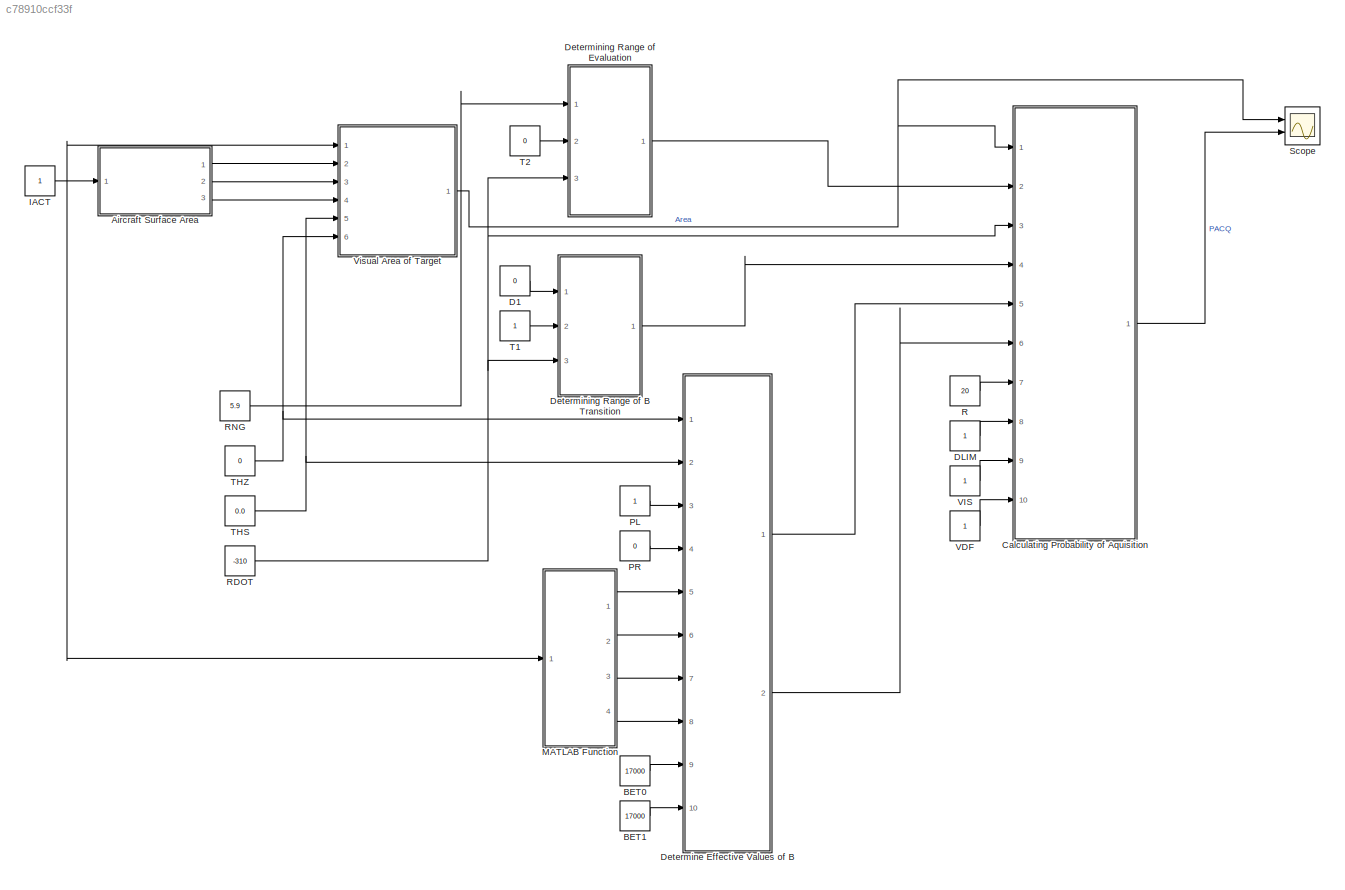
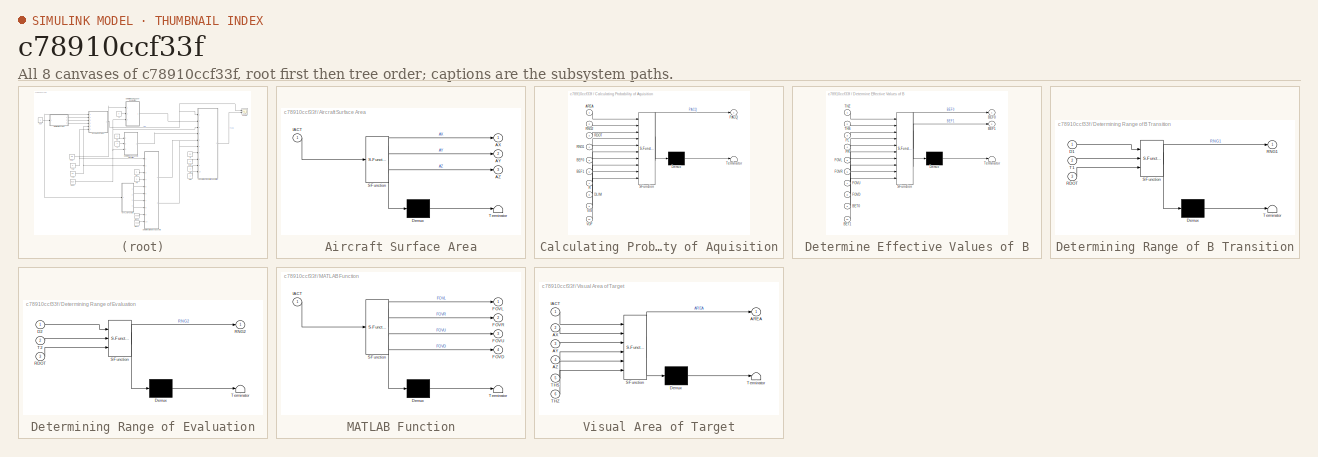
[diagram: thumbnail index - all 8 canvases of the model, root first then tree order]
MODEL slx_c78910ccf33f
KIND model
CONFIG AbsTol = auto
CONFIG EnableMultiTasking = off
CONFIG FixedStep = auto
CONFIG MaxStep = auto
CONFIG MinStep = auto
CONFIG RelTol = 1e-3
CONFIG SampleTimeConstraint = Unconstrained
CONFIG Solver = VariableStepAuto
CONFIG SolverName = VariableStepAuto
CONFIG StartTime = 0.0
CONFIG StopTime = 10.0
BLOCK [SubSystem] Aircraft Surface Area
  ErrorFcn = Stateflow.Translate.translate
  PermitHierarchicalResolution = ExplicitOnly
  Ports = [1, 3]
  RequestExecContextInheritance = off
  SFBlockType = MATLAB Function
  TreatAsAtomicUnit = on
BLOCK [Demux] Aircraft Surface Area/ Demux 
  Outputs = 1
  Ports = [1, 1]
BLOCK [S-Function] Aircraft Surface Area/ SFunction 
  EnableBusSupport = on
  FunctionName = sf_sfun
  PortCounts = [1 4]
  Ports = [1, 4]
  SFcnIsStateOwnerBlock = off
  SFunctionDeploymentMode = off
  Tag = Stateflow S-Function 3
BLOCK [Terminator] Aircraft Surface Area/ Terminator 
BLOCK [Outport] Aircraft Surface Area/AX
  IconDisplay = Port number
BLOCK [Outport] Aircraft Surface Area/AY
  IconDisplay = Port number
  Port = 2
BLOCK [Outport] Aircraft Surface Area/AZ
  IconDisplay = Port number
  Port = 3
BLOCK [Inport] Aircraft Surface Area/IACT
  IconDisplay = Port number
BLOCK [Constant] BET0
  Value = 17000
BLOCK [Constant] BET1
  Value = 17000
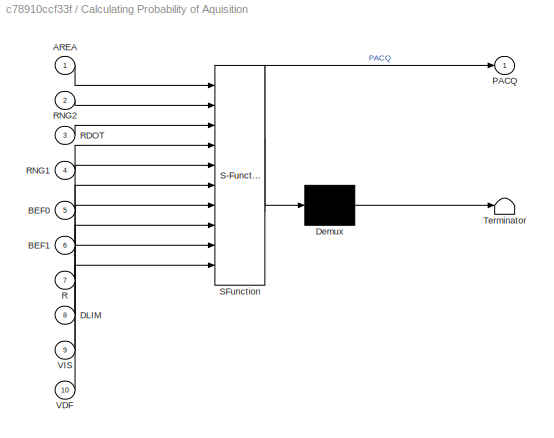
BLOCK [SubSystem] Calculating Probability of Aquisition
  ErrorFcn = Stateflow.Translate.translate
  PermitHierarchicalResolution = ExplicitOnly
  Ports = [10, 1]
  RequestExecContextInheritance = off
  SFBlockType = MATLAB Function
  TreatAsAtomicUnit = on
BLOCK [Demux] Calculating Probability of Aquisition/ Demux 
  Outputs = 1
  Ports = [1, 1]
BLOCK [S-Function] Calculating Probability of Aquisition/ SFunction 
  EnableBusSupport = on
  FunctionName = sf_sfun
  PortCounts = [10 2]
  Ports = [10, 2]
  SFcnIsStateOwnerBlock = off
  SFunctionDeploymentMode = off
  Tag = Stateflow S-Function 1
BLOCK [Terminator] Calculating Probability of Aquisition/ Terminator 
BLOCK [Inport] Calculating Probability of Aquisition/AREA
  IconDisplay = Port number
BLOCK [Inport] Calculating Probability of Aquisition/BEF0
  IconDisplay = Port number
  Port = 5
BLOCK [Inport] Calculating Probability of Aquisition/BEF1
  IconDisplay = Port number
  Port = 6
BLOCK [Inport] Calculating Probability of Aquisition/DLIM
  IconDisplay = Port number
  Port = 8
BLOCK [Outport] Calculating Probability of Aquisition/PACQ
  IconDisplay = Port number
BLOCK [Inport] Calculating Probability of Aquisition/R
  IconDisplay = Port number
  Port = 7
BLOCK [Inport] Calculating Probability of Aquisition/RDOT
  IconDisplay = Port number
  Port = 3
BLOCK [Inport] Calculating Probability of Aquisition/RNG1
  IconDisplay = Port number
  Port = 4
BLOCK [Inport] Calculating Probability of Aquisition/RNG2
  IconDisplay = Port number
  Port = 2
BLOCK [Inport] Calculating Probability of Aquisition/VDF
  IconDisplay = Port number
  Port = 10
BLOCK [Inport] Calculating Probability of Aquisition/VIS
  IconDisplay = Port number
  Port = 9
BLOCK [Constant] D1
  Value = 0
BLOCK [Constant] DLIM
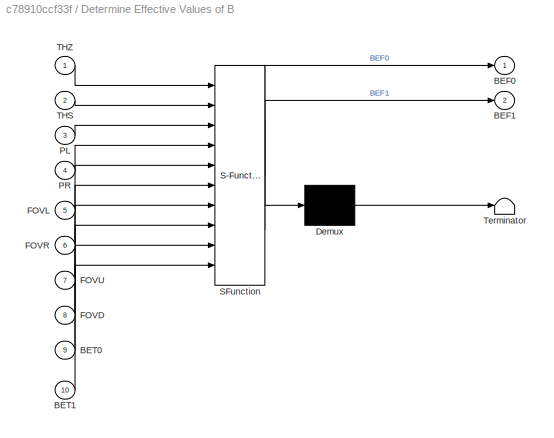
BLOCK [SubSystem] Determine Effective Values of B
  ErrorFcn = Stateflow.Translate.translate
  PermitHierarchicalResolution = ExplicitOnly
  Ports = [10, 2]
  RequestExecContextInheritance = off
  SFBlockType = MATLAB Function
  TreatAsAtomicUnit = on
BLOCK [Demux] Determine Effective Values of B/ Demux 
  Outputs = 1
  Ports = [1, 1]
BLOCK [S-Function] Determine Effective Values of B/ SFunction 
  EnableBusSupport = on
  FunctionName = sf_sfun
  PortCounts = [10 3]
  Ports = [10, 3]
  SFcnIsStateOwnerBlock = off
  SFunctionDeploymentMode = off
  Tag = Stateflow S-Function 6
BLOCK [Terminator] Determine Effective Values of B/ Terminator 
BLOCK [Outport] Determine Effective Values of B/BEF0
  IconDisplay = Port number
BLOCK [Outport] Determine Effective Values of B/BEF1
  IconDisplay = Port number
  Port = 2
BLOCK [Inport] Determine Effective Values of B/BET0
  IconDisplay = Port number
  Port = 9
BLOCK [Inport] Determine Effective Values of B/BET1
  IconDisplay = Port number
  Port = 10
BLOCK [Inport] Determine Effective Values of B/FOVD
  IconDisplay = Port number
  Port = 8
BLOCK [Inport] Determine Effective Values of B/FOVL
  IconDisplay = Port number
  Port = 5
BLOCK [Inport] Determine Effective Values of B/FOVR
  IconDisplay = Port number
  Port = 6
BLOCK [Inport] Determine Effective Values of B/FOVU
  IconDisplay = Port number
  Port = 7
BLOCK [Inport] Determine Effective Values of B/PL
  IconDisplay = Port number
  Port = 3
BLOCK [Inport] Determine Effective Values of B/PR
  IconDisplay = Port number
  Port = 4
BLOCK [Inport] Determine Effective Values of B/THS
  IconDisplay = Port number
  Port = 2
BLOCK [Inport] Determine Effective Values of B/THZ
  IconDisplay = Port number
BLOCK [SubSystem] Determining Range of B Transition
  ErrorFcn = Stateflow.Translate.translate
  PermitHierarchicalResolution = ExplicitOnly
  Ports = [3, 1]
  RequestExecContextInheritance = off
  SFBlockType = MATLAB Function
  TreatAsAtomicUnit = on
BLOCK [Demux] Determining Range of B Transition/ Demux 
  Outputs = 1
  Ports = [1, 1]
BLOCK [S-Function] Determining Range of B Transition/ SFunction 
  EnableBusSupport = on
  FunctionName = sf_sfun
  PortCounts = [3 2]
  Ports = [3, 2]
  SFcnIsStateOwnerBlock = off
  SFunctionDeploymentMode = off
  Tag = Stateflow S-Function 4
BLOCK [Terminator] Determining Range of B Transition/ Terminator 
BLOCK [Inport] Determining Range of B Transition/D1
  IconDisplay = Port number
BLOCK [Inport] Determining Range of B Transition/RDOT
  IconDisplay = Port number
  Port = 3
BLOCK [Outport] Determining Range of B Transition/RNG1
  IconDisplay = Port number
BLOCK [Inport] Determining Range of B Transition/T1
  IconDisplay = Port number
  Port = 2
BLOCK [SubSystem] Determining Range of Evaluation
  ErrorFcn = Stateflow.Translate.translate
  PermitHierarchicalResolution = ExplicitOnly
  Ports = [3, 1]
  RequestExecContextInheritance = off
  SFBlockType = MATLAB Function
  TreatAsAtomicUnit = on
BLOCK [Demux] Determining Range of Evaluation/ Demux 
  Outputs = 1
  Ports = [1, 1]
BLOCK [S-Function] Determining Range of Evaluation/ SFunction 
  EnableBusSupport = on
  FunctionName = sf_sfun
  PortCounts = [3 2]
  Ports = [3, 2]
  SFcnIsStateOwnerBlock = off
  SFunctionDeploymentMode = off
  Tag = Stateflow S-Function 5
BLOCK [Terminator] Determining Range of Evaluation/ Terminator 
BLOCK [Inport] Determining Range of Evaluation/D2
  IconDisplay = Port number
BLOCK [Inport] Determining Range of Evaluation/RDOT
  IconDisplay = Port number
  Port = 3
BLOCK [Outport] Determining Range of Evaluation/RNG2
  IconDisplay = Port number
BLOCK [Inport] Determining Range of Evaluation/T2
  IconDisplay = Port number
  Port = 2
BLOCK [Constant] IACT 
BLOCK [SubSystem] MATLAB Function
  ErrorFcn = Stateflow.Translate.translate
  PermitHierarchicalResolution = ExplicitOnly
  Ports = [1, 4]
  RequestExecContextInheritance = off
  SFBlockType = MATLAB Function
  TreatAsAtomicUnit = on
BLOCK [Demux] MATLAB Function/ Demux 
  Outputs = 1
  Ports = [1, 1]
BLOCK [S-Function] MATLAB Function/ SFunction 
  EnableBusSupport = on
  FunctionName = sf_sfun
  PortCounts = [1 5]
  Ports = [1, 5]
  SFcnIsStateOwnerBlock = off
  SFunctionDeploymentMode = off
  Tag = Stateflow S-Function 7
BLOCK [Terminator] MATLAB Function/ Terminator 
BLOCK [Outport] MATLAB Function/FOVD
  IconDisplay = Port number
  Port = 4
BLOCK [Outport] MATLAB Function/FOVL
  IconDisplay = Port number
BLOCK [Outport] MATLAB Function/FOVR
  IconDisplay = Port number
  Port = 2
BLOCK [Outport] MATLAB Function/FOVU
  IconDisplay = Port number
  Port = 3
BLOCK [Inport] MATLAB Function/IACT
  IconDisplay = Port number
BLOCK [Constant] PL
BLOCK [Constant] PR
  Value = 0
BLOCK [Constant] R
  Value = 20
BLOCK [Constant] RDOT 
  Value = -310
BLOCK [Constant] RNG 
  Value = 5.9
BLOCK [Scope] Scope
  Floating = off
  NumInputPorts = 2
  Ports = [2]
  ScopeSpecificationString = Simulink.scopes.TimeScopeBlockCfg('CurrentConfiguration', extmgr.ConfigurationSet(extmgr.Configuration('Core','General UI',true),extmgr.Configuration('Core','Source UI',true),extmgr.Configuration('Sources','WiredSimulink',true),extmgr.Configuration('Visuals','Time Domain',true,'SerializedDisplays',{struct('MinYLimReal','-3.40225','MaxYLimReal','39.26692','YLabelReal','','MinYLimMag','0.00000','Max...<+1455ch>
BLOCK [Constant] T1
BLOCK [Constant] T2
  Value = 0
BLOCK [Constant] THS
  Value = 0.0
BLOCK [Constant] THZ
  Value = 0
BLOCK [Constant] VDF 
BLOCK [Constant] VIS
BLOCK [SubSystem] Visual Area of Target
  ErrorFcn = Stateflow.Translate.translate
  PermitHierarchicalResolution = ExplicitOnly
  Ports = [6, 1]
  RequestExecContextInheritance = off
  SFBlockType = MATLAB Function
  TreatAsAtomicUnit = on
BLOCK [Demux] Visual Area of Target/ Demux 
  Outputs = 1
  Ports = [1, 1]
BLOCK [S-Function] Visual Area of Target/ SFunction 
  EnableBusSupport = on
  FunctionName = sf_sfun
  PortCounts = [6 2]
  Ports = [6, 2]
  SFcnIsStateOwnerBlock = off
  SFunctionDeploymentMode = off
  Tag = Stateflow S-Function 2
BLOCK [Terminator] Visual Area of Target/ Terminator 
BLOCK [Outport] Visual Area of Target/AREA
  IconDisplay = Port number
BLOCK [Inport] Visual Area of Target/AX
  IconDisplay = Port number
  Port = 2
BLOCK [Inport] Visual Area of Target/AY
  IconDisplay = Port number
  Port = 3
BLOCK [Inport] Visual Area of Target/AZ
  IconDisplay = Port number
  Port = 4
BLOCK [Inport] Visual Area of Target/IACT
  IconDisplay = Port number
BLOCK [Inport] Visual Area of Target/THS
  IconDisplay = Port number
  Port = 5
BLOCK [Inport] Visual Area of Target/THZ
  IconDisplay = Port number
  Port = 6
LINE Aircraft Surface Area:1 -> Visual Area of Target:2
LINE Aircraft Surface Area:2 -> Visual Area of Target:3
LINE Aircraft Surface Area:3 -> Visual Area of Target:4
LINE BET0:1 -> Determine Effective Values of B:9
LINE BET1:1 -> Determine Effective Values of B:10
LINE Calculating Probability of Aquisition:1 -> Scope:2
LINE D1:1 -> Determining Range of B Transition:1
LINE DLIM:1 -> Calculating Probability of Aquisition:8
LINE Determine Effective Values of B:1 -> Calculating Probability of Aquisition:5
LINE Determine Effective Values of B:2 -> Calculating Probability of Aquisition:6
LINE Determining Range of B Transition:1 -> Calculating Probability of Aquisition:4
LINE Determining Range of Evaluation:1 -> Calculating Probability of Aquisition:2
NET IACT :1 -> Aircraft Surface Area:1, MATLAB Function:1, Visual Area of Target:1
LINE MATLAB Function:1 -> Determine Effective Values of B:5
LINE MATLAB Function:2 -> Determine Effective Values of B:6
LINE MATLAB Function:3 -> Determine Effective Values of B:7
LINE MATLAB Function:4 -> Determine Effective Values of B:8
LINE PL:1 -> Determine Effective Values of B:3
LINE PR:1 -> Determine Effective Values of B:4
LINE R:1 -> Calculating Probability of Aquisition:7
NET RDOT :1 -> Calculating Probability of Aquisition:3, Determining Range of B Transition:3, Determining Range of Evaluation:3
LINE RNG :1 -> Determining Range of Evaluation:1
LINE T1:1 -> Determining Range of B Transition:2
LINE T2:1 -> Determining Range of Evaluation:2
NET THS:1 -> Determine Effective Values of B:2, Visual Area of Target:5
NET THZ:1 -> Determine Effective Values of B:1, Visual Area of Target:6
LINE VDF :1 -> Calculating Probability of Aquisition:10
LINE VIS:1 -> Calculating Probability of Aquisition:9
NET Visual Area of Target:1 -> Calculating Probability of Aquisition:1, Scope:1
note: NET lines group one-source signal fan-out (src -> all destinations, sorted); 1:1 wires keep LINE
CHART Calculating Probability of Aquisition states=1 transitions=1
  STATE_LABEL 'eML_blk_kernel()'
  STATE_LABEL 'SCRIPT:\nfunction PACQ = JAndrews_Mod_7(AREA, RNG2, RDOT, RNG1, BEF0, BEF1, R, DLIM, VIS, VDF)\n% Input variable defintions\n% No, symbol, name, value, definition\n% 7.  R,  R,    20. nmi,                  visual range\n% 8.  d,  DLIM, 1 arc-min,                Resolution limit of human eye.\n% 17. r., RDOT, 380 kt*,                  Range rate of target aircraft\n% 21. A,  AREA, 35 sq.ft.*,             ...<+2333ch>'
CHART Visual Area of Target states=1 transitions=1
  STATE_LABEL 'eML_blk_kernel()'
  STATE_LABEL 'SCRIPT:\nfunction AREA = JAndrews_Mod_3(IACT,AX, AY, AZ, THS, THZ)\n% Input variable defintions\n% No, symbol, name, value, definition\n% 18. Ax, AX,   35 sq.ft.*,               Head-on visual area of target.\n% 19. Ay, AY,   85 sq.ft.*,               Broadside visual area of target.\n% 20. Az, AZ,   260 sq.ft.*,              Topside visual area of target.\n% 21. A,  AREA, 35 sq.ft.*,               Final...<+3608ch>'
CHART Aircraft Surface Area states=1 transitions=1
  STATE_LABEL 'eML_blk_kernel()'
  STATE_LABEL 'SCRIPT:\nfunction [AX, AY, AZ] = JAndrews_Mod_1(IACT)\n\n% Input variable defintions\n% No, symbol, name, value, definition\n% 1.  - , BET0, 17000 per steradian-sec,  single pilot B values before transition\n% 2.  - , BET1, 17000 per steradian-sec,  Single-pilot B value after transition\n% 3.  t1, T1,   180 sec,                  modified tau time for B transition (time to closest approach)\n% 4.  t2, T2, ...<+3608ch>'
CHART Determining Range of B Transition states=1 transitions=1
  STATE_LABEL 'eML_blk_kernel()'
  STATE_LABEL 'SCRIPT:\nfunction RNG1 = JAndrews_Mod_6(D1,T1,RDOT)\n% Input variable defintions\n% No, symbol, name, value, definition\n% 3.  t1, T1,   180 sec,                  modified tau time for B transition (time to closest approach)\n% 5.  D1, D1,   0. nmi,                   modified tau range parameter for B transition.\n% 17. r., RDOT, 380 kt*,                  Range rate of target aircraft\n% 24. R1, RNG1, 3....<+1293ch>'
CHART Determining Range of Evaluation states=1 transitions=1
  STATE_LABEL 'eML_blk_kernel()'
  STATE_LABEL 'SCRIPT:\nfunction RNG2 = JAndrews_Mod_5(D2, T2, RDOT)\n% Input variable defintions\n% No, symbol, name, value, definition\n% 4.  t2, T2,   12 sec,                   modified tau time for evaluation of PACQ (time to closest approach)\n% 6.  D2, D2,   0. nmi,                   modified tau range parameter for PACQ evaluation\n% 17. r., RDOT, 380 kt*,                  Range rate of target aircraft\n% 25. R2...<+1289ch>'
CHART Determine Effective Values of B states=1 transitions=1
  STATE_LABEL 'eML_blk_kernel()'
  STATE_LABEL 'SCRIPT:\nfunction [BEF0, BEF1] = JAndrews_Mod_4(THZ, THS, PL, PR, FOVL, FOVR, FOVU, FOVD, BET0, BET1)\n% Input variable defintions\n% No, symbol, name, value, definition\n% 1.  - , BET0, 17000 per steradian-sec,  single pilot B values before transition\n% 2.  - , BET1, 17000 per steradian-sec,  Single-pilot B value after transition\n% 13. PL, PL,   1.0,                      Search intensity for pilot in...<+3608ch>'
CHART MATLAB Function states=1 transitions=1
  STATE_LABEL 'eML_blk_kernel()'
  STATE_LABEL "SCRIPT:\n function [FOVL, FOVR, FOVU, FOVD] = JAndrews_Mod_8  (IACT)\n\n%field of view values derived from \n \n%Aircarft types used - structure\ntmpstruct=struct('IACT',0,'ACTYPE','                    ','NAME','                    ','FOVL',0,'FOVR',0,'FOVU',0,'FOVD',0);\nAC_Int_Struct=[tmpstruct;tmpstruct;tmpstruct;tmpstruct;tmpstruct;tmpstruct;tmpstruct];\nfor it=1:7\n\n     AC_Int_Struct(1).IACT=1;  %one...<+2642ch>"
